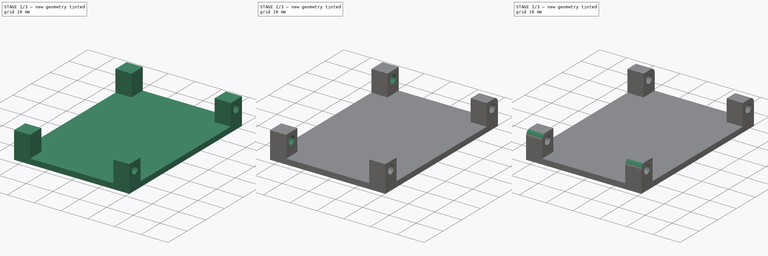
[diagram: build sequence overview — one tinted view per stage of 3, left to right]
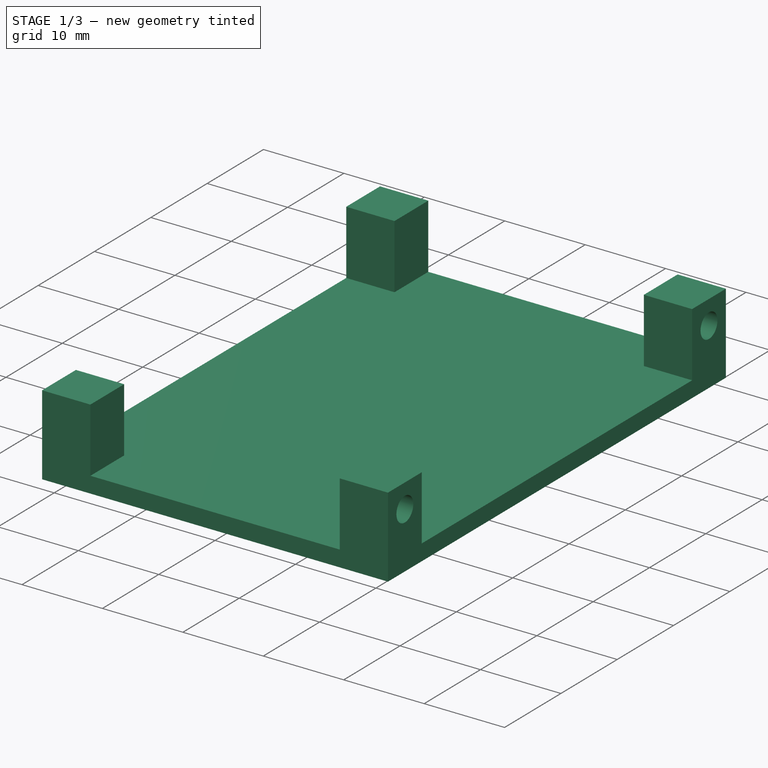
[diagram: stage 1 of 3 — iso view after this stage's code; geometry added in this stage tinted green]
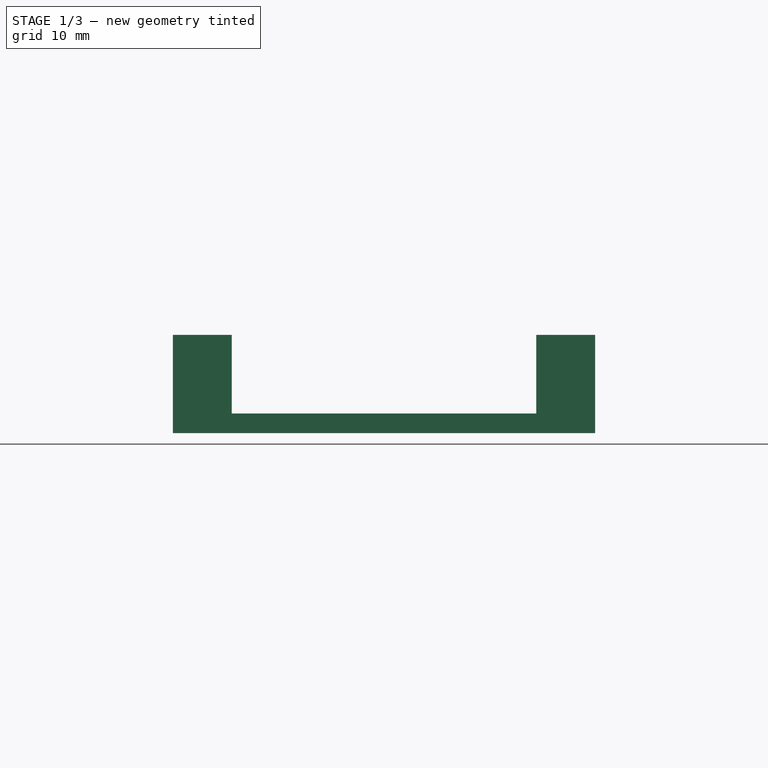
[diagram: stage 1 of 3 — front view after this stage's code; geometry added in this stage tinted green]
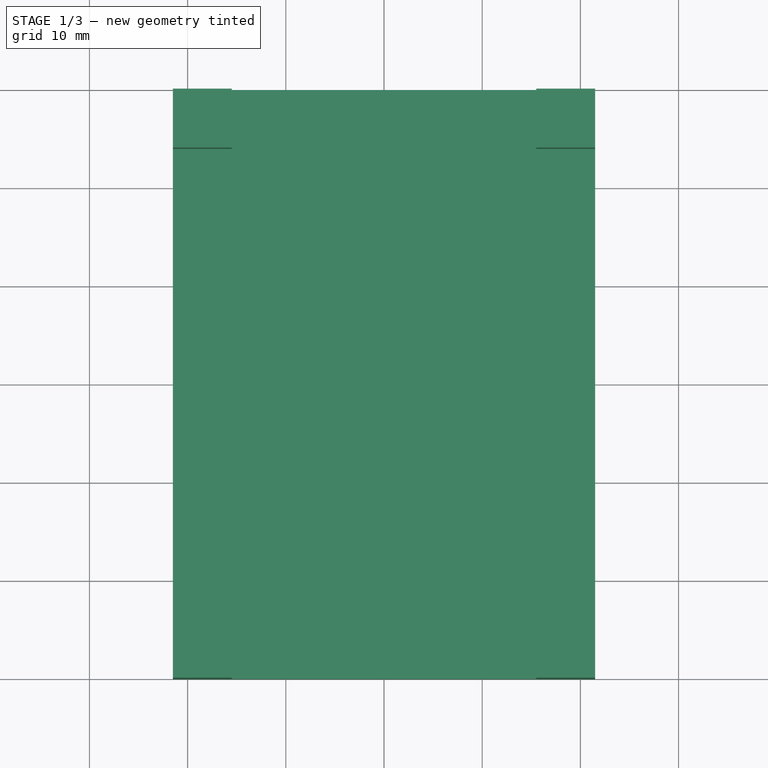
[diagram: stage 1 of 3 — top view after this stage's code; geometry added in this stage tinted green]
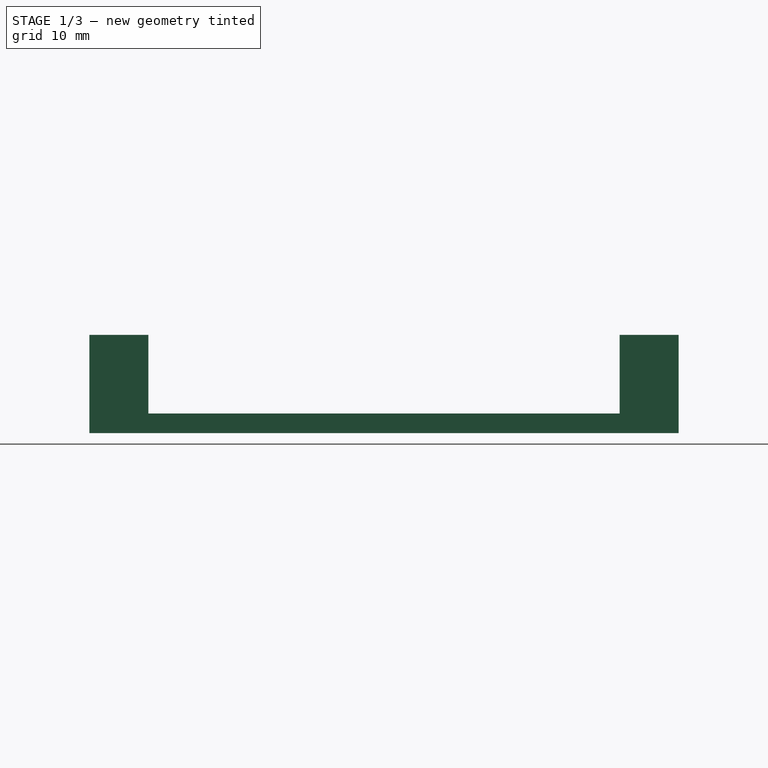
[diagram: stage 1 of 3 — right view after this stage's code; geometry added in this stage tinted green]
FCSTD DOCUMENT  (FreeCAD 0.20R29177 +426 (Git))
Label: headPlate
License: All rights reserved
LicenseURL: http://en.wikipedia.org/wiki/All_rights_reserved
objects: Sketcher::SketchObject×4, PartDesign::Fillet×4, PartDesign::Pad×2, PartDesign::Pocket×2, PartDesign::Body×1
note: 21 computed .brp shape members not serialized (recipe doc carries the construction recipe); baked Part::Feature solids carry a one-line shape summary decoded from their .brp

FEATURE [Sketcher::SketchObject] Sketch
  FullyConstrained = true
  MapMode = 5
  Support = -> [XY_Plane]
  sketch-geometry (4):
    g0: LineSegment StartX=-21.5 StartY=30 StartZ=0 EndX=21.5 EndY=30 EndZ=0
    g1: LineSegment StartX=21.5 StartY=30 StartZ=0 EndX=21.5 EndY=-30 EndZ=0
    g2: LineSegment StartX=21.5 StartY=-30 StartZ=0 EndX=-21.5 EndY=-30 EndZ=0
    g3: LineSegment StartX=-21.5 StartY=-30 StartZ=0 EndX=-21.5 EndY=30 EndZ=0
  constraints (11):
    c: Coincident(g0,g1)
    c: Coincident(g1,g2)
    c: Coincident(g2,g3)
    c: Coincident(g3,g0)
    c: Horizontal(g0)
    c: Horizontal(g2)
    c: Vertical(g1)
    c: Vertical(g3)
    c: DistanceY(g1,g1) = 60
    c: DistanceX(g0,g0) = 43
    c: Symmetric(g0,g2,g-1)
FEATURE [PartDesign::Pad] Pad  label="basePlate"
  Direction = (0,0,1)
  Length = 2
  Length2 = 10
  Profile = -> Sketch
  ReferenceAxis = -> Sketch [N_Axis]
  Type = 0
FEATURE [Sketcher::SketchObject] Sketch001
  ExternalGeometry = -> [Pad]
  FullyConstrained = true
  MapMode = 5
  Placement = pos=(0,0,2) rot=(0,0,1;0rad)
  Support = -> [Pad]
  sketch-geometry (16):
    g0: LineSegment StartX=-21.5 StartY=30 StartZ=0 EndX=-15.5 EndY=30 EndZ=0
    g1: LineSegment StartX=-15.5 StartY=30 StartZ=0 EndX=-15.5 EndY=24 EndZ=0
    g2: LineSegment StartX=-15.5 StartY=24 StartZ=0 EndX=-21.5 EndY=24 EndZ=0
    g3: LineSegment StartX=-21.5 StartY=24 StartZ=0 EndX=-21.5 EndY=30 EndZ=0
    g4: LineSegment StartX=21.5 StartY=30 StartZ=0 EndX=15.5 EndY=30 EndZ=0
    g5: LineSegment StartX=15.5 StartY=30 StartZ=0 EndX=15.5 EndY=24 EndZ=0
    g6: LineSegment StartX=15.5 StartY=24 StartZ=0 EndX=21.5 EndY=24 EndZ=0
    g7: LineSegment StartX=21.5 StartY=24 StartZ=0 EndX=21.5 EndY=30 EndZ=0
    g8: LineSegment StartX=-21.5 StartY=-30 StartZ=0 EndX=-15.5 EndY=-30 EndZ=0
    g9: LineSegment StartX=-15.5 StartY=-30 StartZ=0 EndX=-15.5 EndY=-24 EndZ=0
    g10: LineSegment StartX=-15.5 StartY=-24 StartZ=0 EndX=-21.5 EndY=-24 EndZ=0
    g11: LineSegment StartX=-21.5 StartY=-24 StartZ=0 EndX=-21.5 EndY=-30 EndZ=0
    g12: LineSegment StartX=21.5 StartY=-30 StartZ=0 EndX=15.5 EndY=-30 EndZ=0
    g13: LineSegment StartX=15.5 StartY=-30 StartZ=0 EndX=15.5 EndY=-24 EndZ=0
    g14: LineSegment StartX=15.5 StartY=-24 StartZ=0 EndX=21.5 EndY=-24 EndZ=0
    g15: LineSegment StartX=21.5 StartY=-24 StartZ=0 EndX=21.5 EndY=-30 EndZ=0
  constraints (44):
    c: Coincident(g0,g1)
    c: Coincident(g1,g2)
    c: Coincident(g2,g3)
    c: Coincident(g3,g0)
    c: Horizontal(g0)
    c: Horizontal(g2)
    c: Vertical(g1)
    c: Vertical(g3)
    c: Coincident(g0,g-3)
    c: Coincident(g4,g5)
    c: Coincident(g5,g6)
    c: Coincident(g6,g7)
    c: Coincident(g7,g4)
    c: Horizontal(g4)
    c: Horizontal(g6)
    c: Vertical(g5)
    c: Vertical(g7)
    c: Coincident(g4,g-6)
    c: Coincident(g8,g9)
    c: Coincident(g9,g10)
    c: Coincident(g10,g11)
    c: Coincident(g11,g8)
    c: Horizontal(g8)
    c: Horizontal(g10)
    c: Vertical(g9)
    c: Vertical(g11)
    c: Coincident(g8,g-4)
    c: Coincident(g12,g13)
    c: Coincident(g13,g14)
    c: Coincident(g14,g15)
    c: Coincident(g15,g12)
    c: Horizontal(g12)
    c: Horizontal(g14)
    c: Vertical(g13)
    c: Vertical(g15)
    c: Coincident(g12,g-6)
    c: DistanceX(g2,g2) = 6
    c: DistanceY(g1,g1) = 6
    c: DistanceX(g4,g4) = 6
    c: DistanceY(g5,g5) = 6
    c: DistanceX(g10,g10) = 6
    c: DistanceY(g9,g9) = 6
    c: DistanceY(g13,g13) = 6
    c: DistanceX(g14,g14) = 6
FEATURE [PartDesign::Pad] Pad001  label="standOffs"
  BaseFeature = -> Pad
  Direction = (0,0,1)
  Length = 8
  Length2 = 10
  Profile = -> Sketch001
  ReferenceAxis = -> Sketch001 [N_Axis]
  Type = 0
FEATURE [Sketcher::SketchObject] Sketch002
  ExternalGeometry = -> [Pad001]
  FullyConstrained = true
  MapMode = 5
  Placement = pos=(21.5,0,0) rot=(0.57735,0.57735,0.57735;2.0944rad)
  Support = -> [Pad001]
  sketch-geometry (2):
    g0: Circle CenterX=-27 CenterY=7 CenterZ=0 NormalX=0 NormalY=0 NormalZ=1 AngleXU=0 Radius=1.5
    g1: Circle CenterX=27 CenterY=7 CenterZ=0 NormalX=0 NormalY=0 NormalZ=1 AngleXU=0 Radius=1.5
  constraints (6):
    c: Diameter(g0) = 3
    c: Diameter(g1) = 3
    c: DistanceX(g-3,g0) = 3
    c: DistanceY(g0,g-3) = 3
    c: DistanceX(g-4,g1) = 3
    c: DistanceY(g1,g-4) = 3
FEATURE [PartDesign::Pocket] Pocket  label="screwHolesFront"
  BaseFeature = -> Pad001
  Direction = (-1,0,0)
  Length = 6
  Length2 = 5
  Profile = -> Sketch002
  ReferenceAxis = -> Sketch002 [N_Axis]
  Type = 0
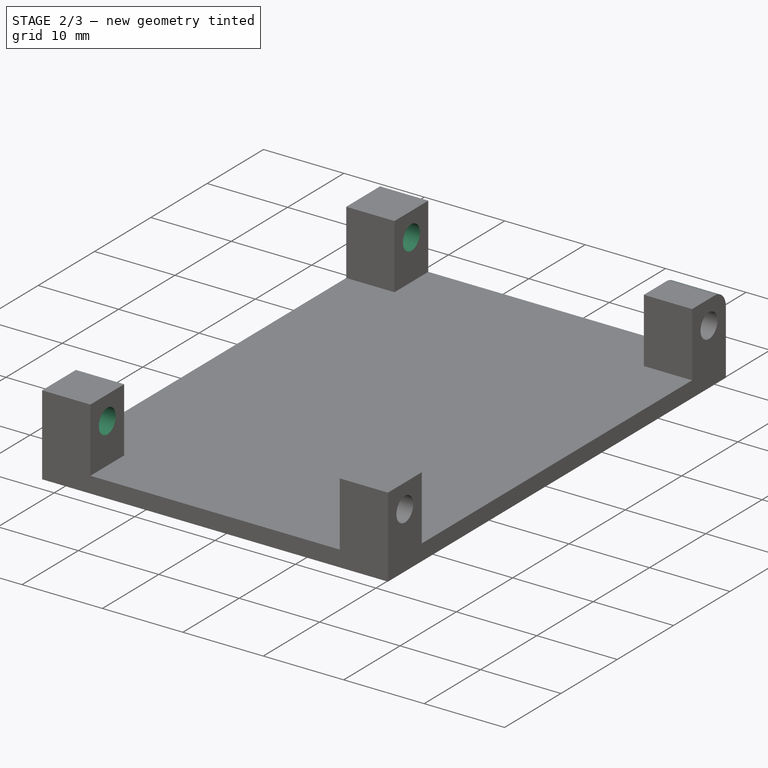
[diagram: stage 2 of 3 — iso view after this stage's code; geometry added in this stage tinted green]
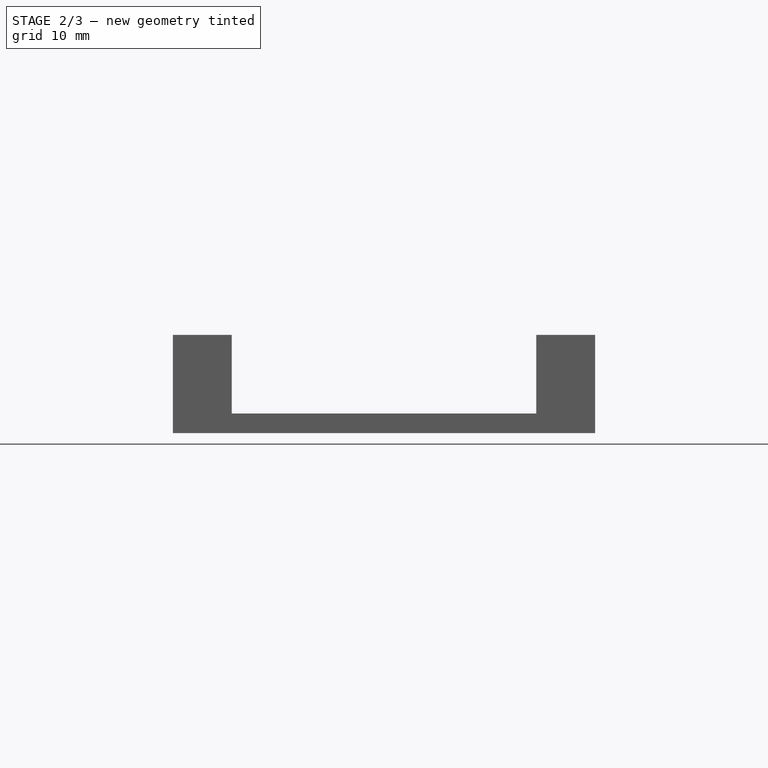
[diagram: stage 2 of 3 — front view after this stage's code; geometry added in this stage tinted green]
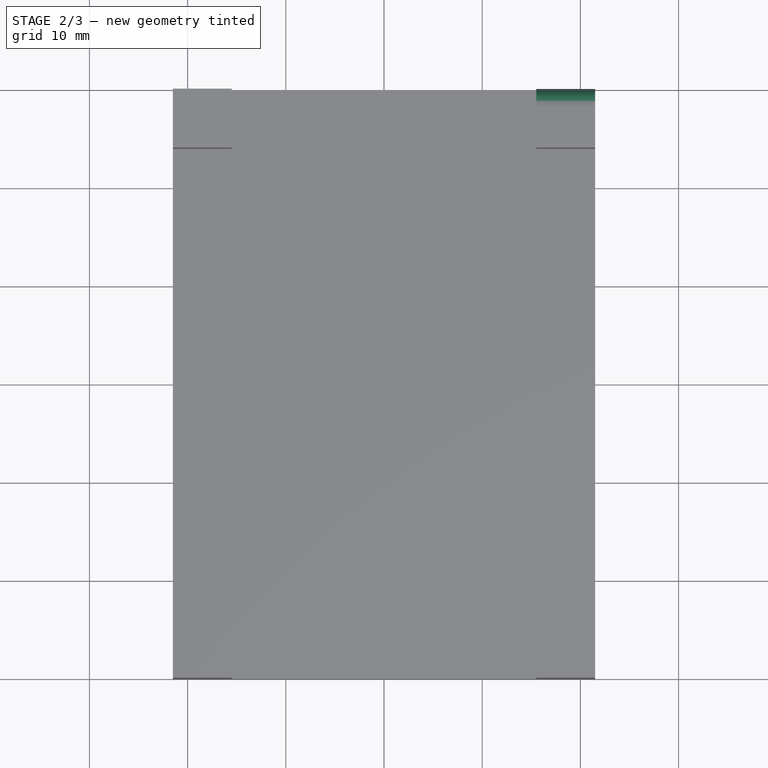
[diagram: stage 2 of 3 — top view after this stage's code; geometry added in this stage tinted green]
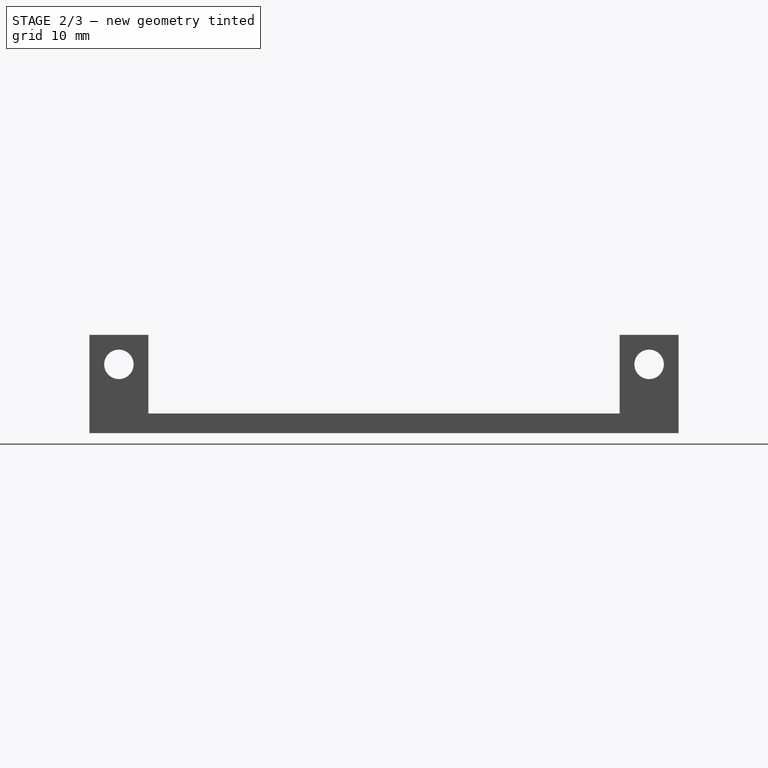
[diagram: stage 2 of 3 — right view after this stage's code; geometry added in this stage tinted green]
FEATURE [Sketcher::SketchObject] Sketch003
  ExternalGeometry = -> [Pocket]
  FullyConstrained = true
  MapMode = 5
  Placement = pos=(-21.5,0,0) rot=(0.57735,-0.57735,-0.57735;2.0944rad)
  Support = -> [Pocket]
  sketch-geometry (2):
    g0: Circle CenterX=-27 CenterY=7 CenterZ=0 NormalX=0 NormalY=0 NormalZ=1 AngleXU=0 Radius=1.5
    g1: Circle CenterX=27 CenterY=7 CenterZ=0 NormalX=0 NormalY=0 NormalZ=1 AngleXU=0 Radius=1.5
  constraints (6):
    c: Diameter(g0) = 3
    c: Diameter(g1) = 3
    c: DistanceX(g-3,g0) = 3
    c: DistanceY(g0,g-3) = 3
    c: DistanceX(g-4,g1) = 3
    c: DistanceY(g1,g-4) = 3
FEATURE [PartDesign::Pocket] Pocket001  label="screwHolesBack"
  BaseFeature = -> Pocket
  Direction = (1,0,0)
  Length = 6
  Length2 = 5
  Profile = -> Sketch003
  ReferenceAxis = -> Sketch003 [N_Axis]
  Type = 0
FEATURE [PartDesign::Fillet] Fillet
  Base = -> Pocket001 [Edge32]
  BaseFeature = -> Pocket001
  Radius = 2
  SupportTransform = false
  UseAllEdges = false
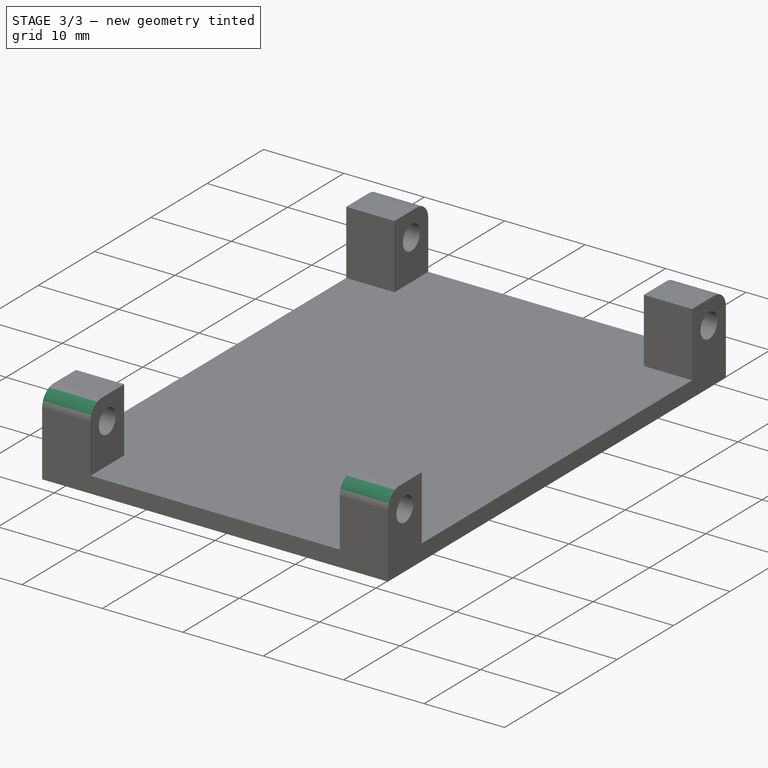
[diagram: stage 3 of 3 — iso view after this stage's code; geometry added in this stage tinted green]
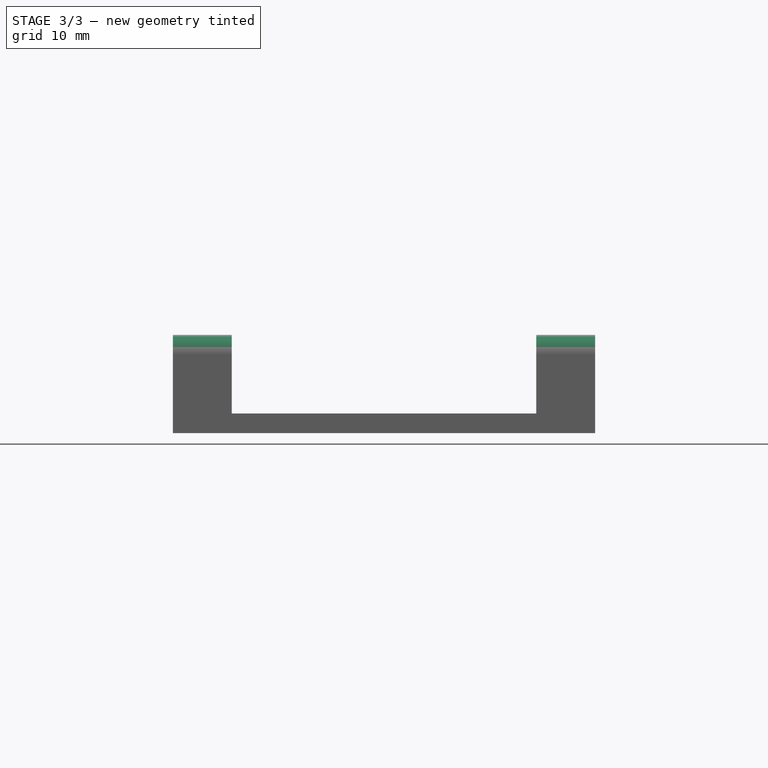
[diagram: stage 3 of 3 — front view after this stage's code; geometry added in this stage tinted green]
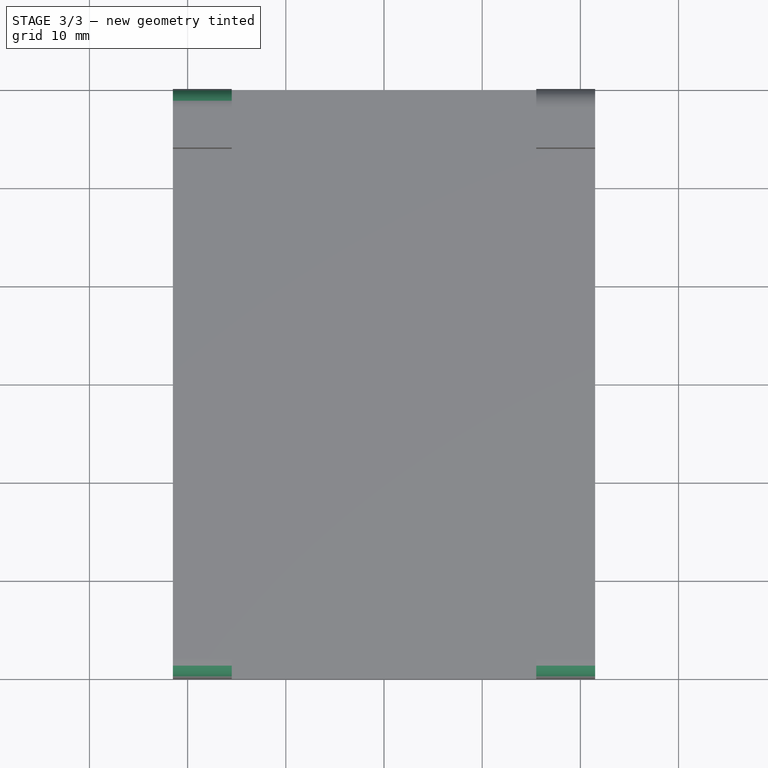
[diagram: stage 3 of 3 — top view after this stage's code; geometry added in this stage tinted green]
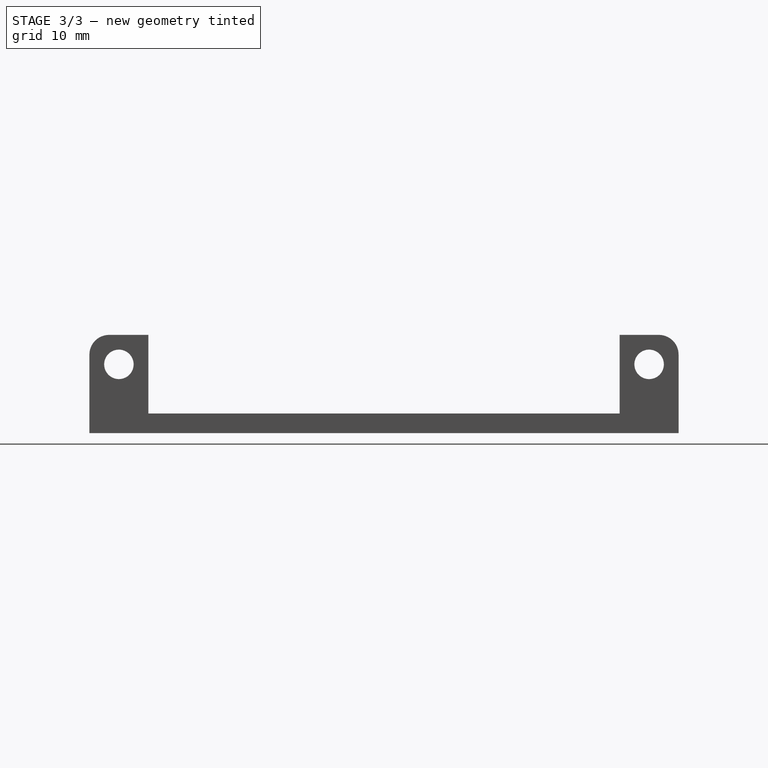
[diagram: stage 3 of 3 — right view after this stage's code; geometry added in this stage tinted green]
FEATURE [PartDesign::Fillet] Fillet001
  Base = -> Fillet [Edge36]
  BaseFeature = -> Fillet
  Radius = 2
  SupportTransform = false
  UseAllEdges = false
FEATURE [PartDesign::Fillet] Fillet002
  Base = -> Fillet001 [Edge75]
  BaseFeature = -> Fillet001
  Radius = 2
  SupportTransform = false
  UseAllEdges = false
FEATURE [PartDesign::Fillet] Fillet003
  Base = -> Fillet002 [Edge68]
  BaseFeature = -> Fillet002
  Radius = 2
  SupportTransform = false
  UseAllEdges = false
FEATURE [PartDesign::Body] Body
  Group = -> [Sketch,Pad,Sketch001,Pad001,Sketch002,Pocket,Sketch003,Pocket001,Fillet,Fillet001,Fillet002,Fillet003]
  Origin = -> Origin
  Tip = -> Fillet003
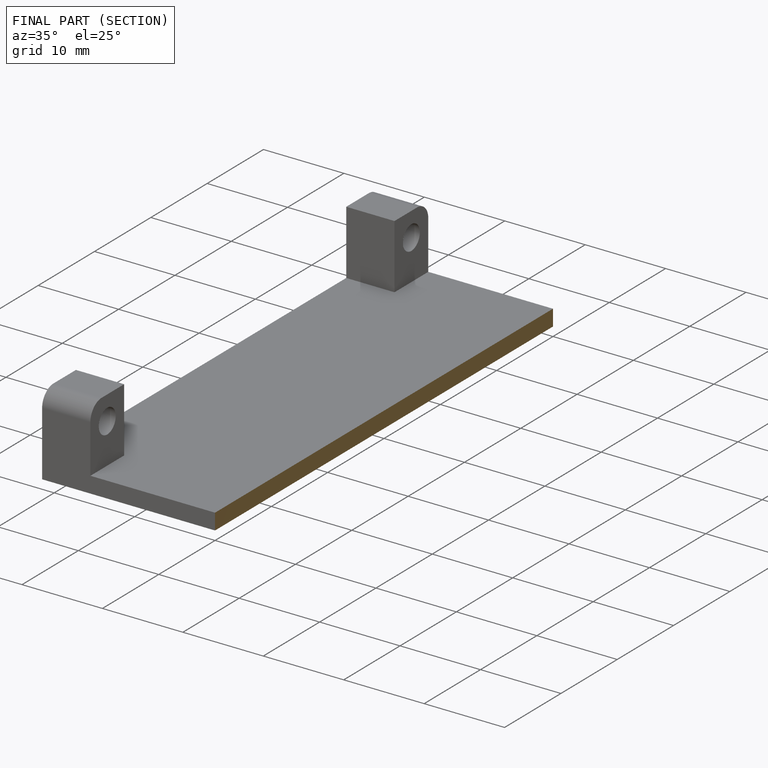
[diagram: finished part — half-section view (interior)]
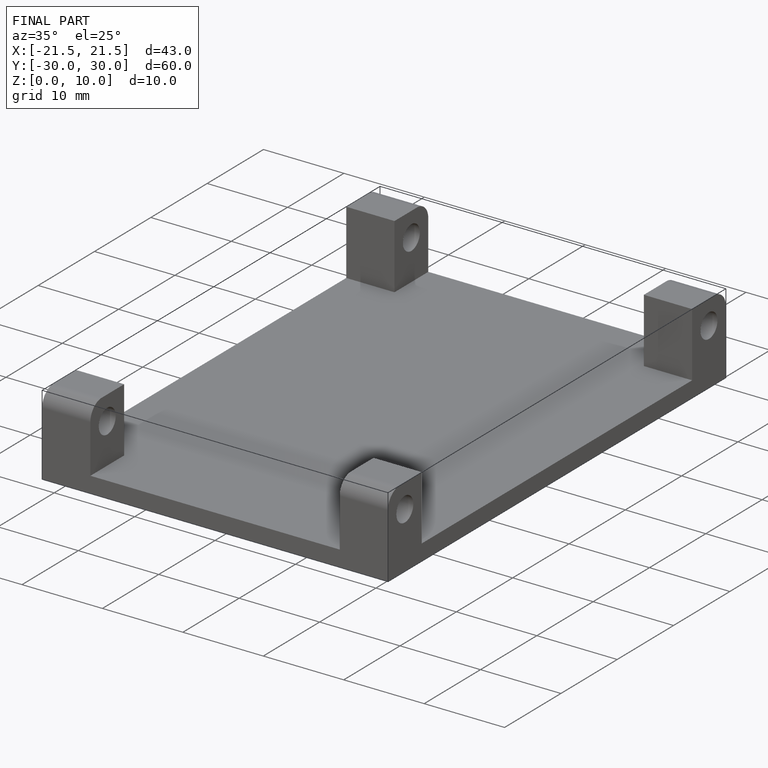
[diagram: finished part — iso view with bounding-box wireframe]
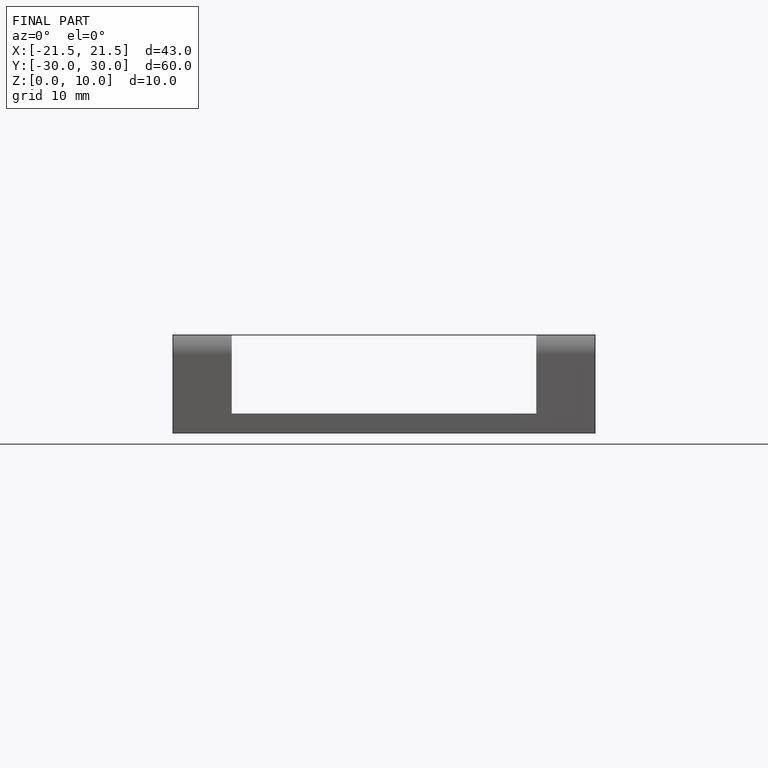
[diagram: finished part — front view with bounding-box wireframe]
